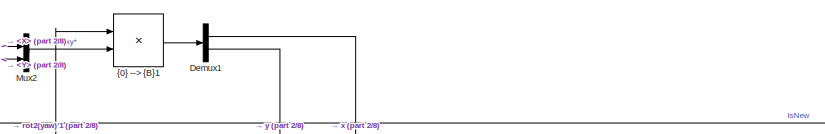
[diagram: root canvas - part 1/8, top center region]
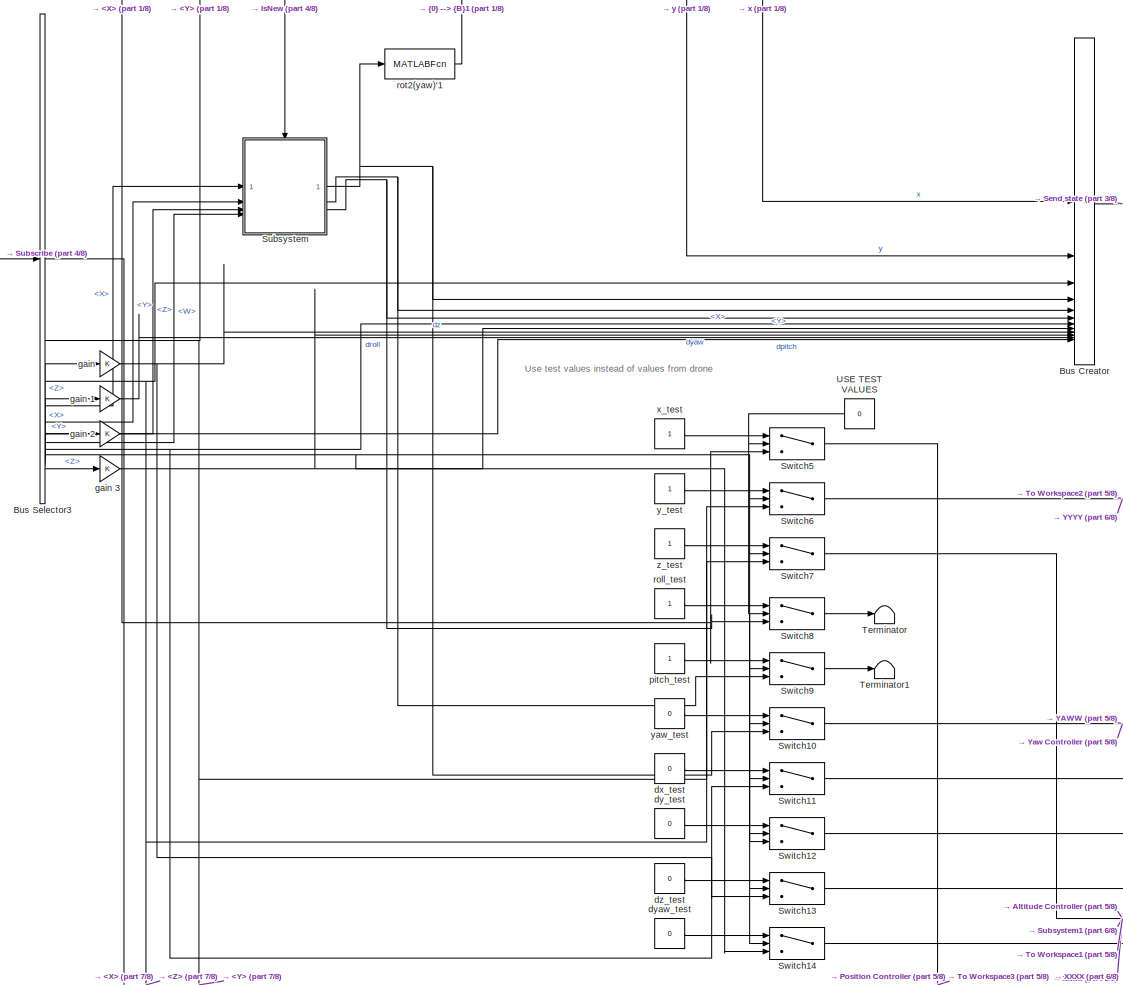
[diagram: root canvas - part 2/8, top left region]
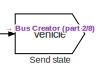
[diagram: root canvas - part 3/8, top center region]
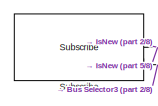
[diagram: root canvas - part 4/8, top left region]
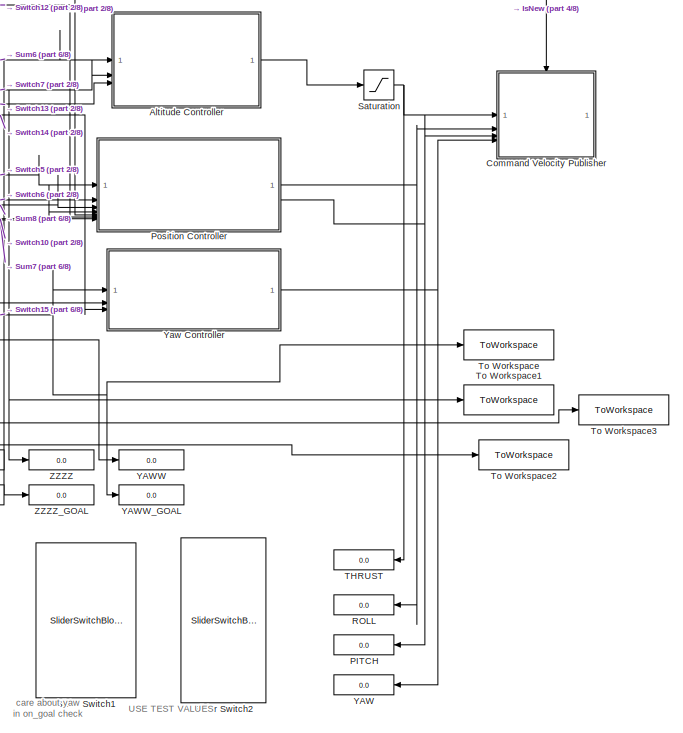
[diagram: root canvas - part 5/8, middle right region]
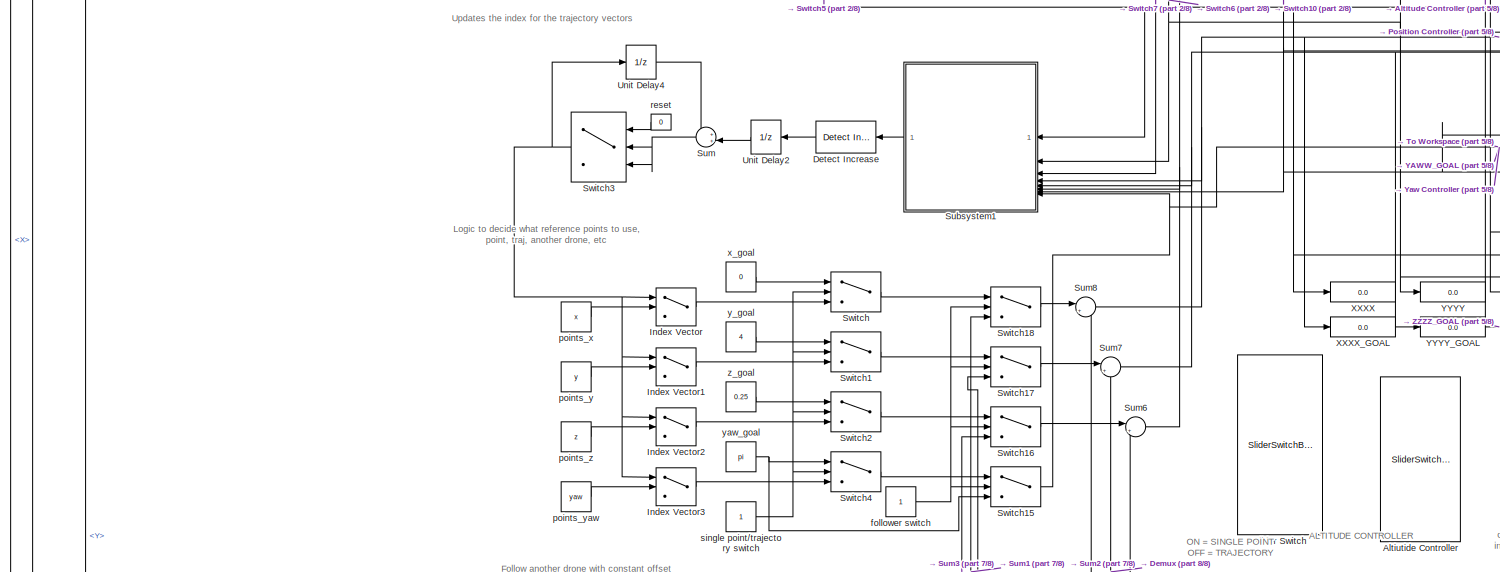
[diagram: root canvas - part 6/8, central region]
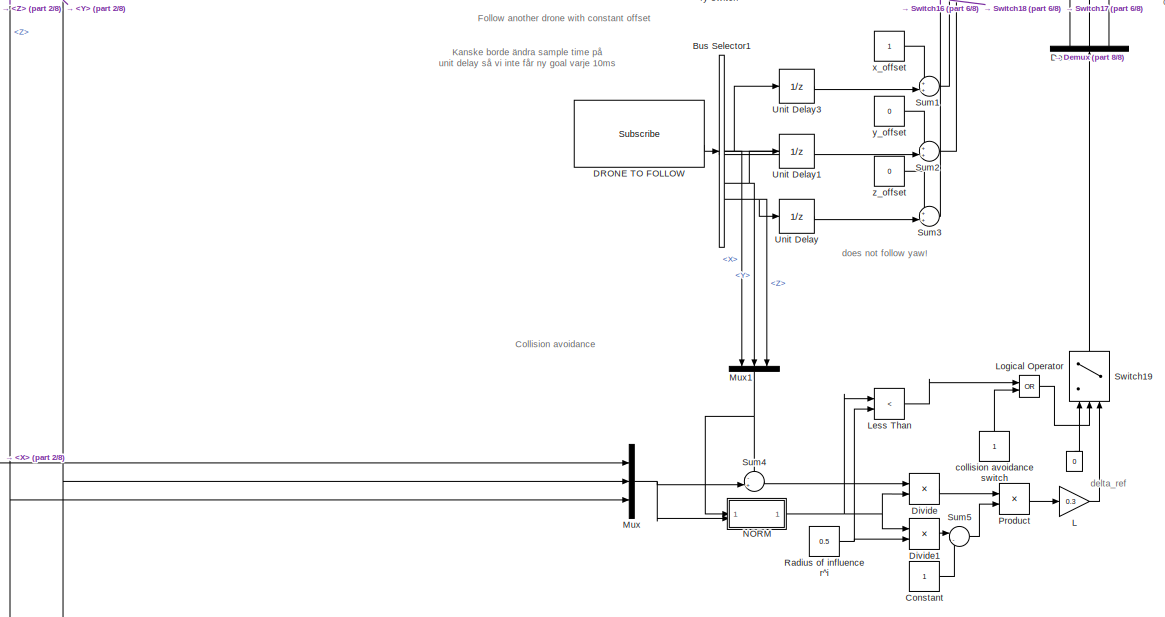
[diagram: root canvas - part 7/8, bottom center region]
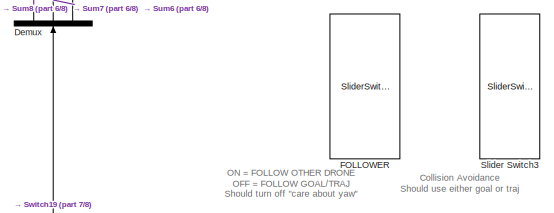
[diagram: root canvas - part 8/8, bottom right region]
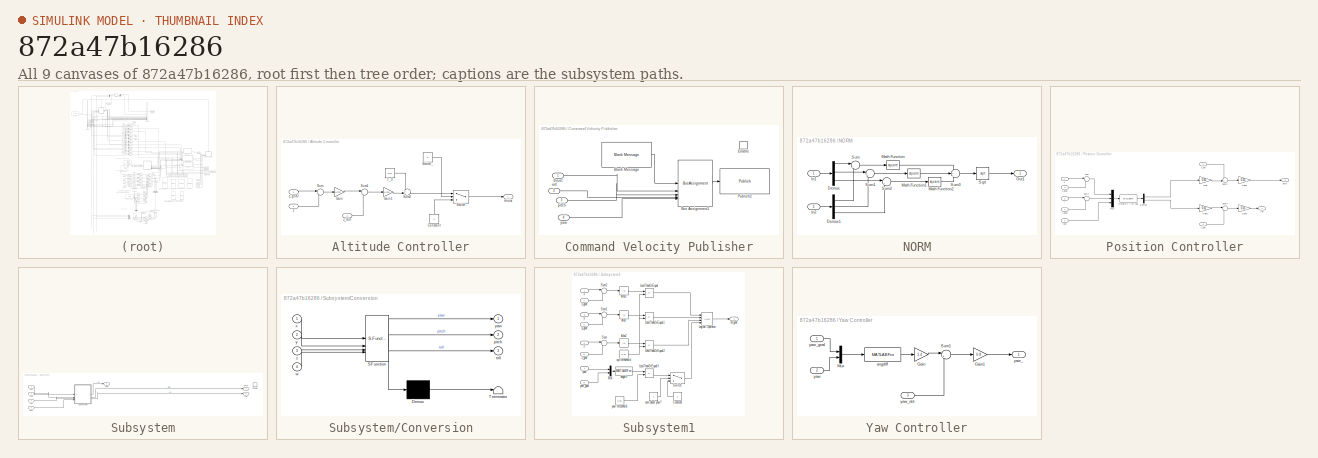
[diagram: thumbnail index - all 9 canvases of the model, root first then tree order]
MODEL slx_872a47b16286
KIND model
CONFIG AbsTol = auto
CONFIG EnableMultiTasking = on
CONFIG FixedStep = auto
CONFIG MaxStep = 0.1
CONFIG MinStep = auto
CONFIG PreLoadFcn = % load parameters of the default quadrotor\ndisp('Quadrotor parameters loaded by PreLoadFcn')\nmdl_quadrotor
CONFIG RelTol = 1e-3
CONFIG SampleTimeConstraint = Unconstrained
CONFIG SolverName = FixedStepAuto
CONFIG StartTime = 0.0
CONFIG StopTime = inf
BLOCK [Constant]  
  NameLocation = right
  Value = 0
BLOCK [SubSystem] Altitude Controller
BLOCK [Constant] Altitude Controller/Constant
  NameLocation = right
  Value = 0
BLOCK [Gain] Altitude Controller/Gain
  Gain = 0.275
BLOCK [Gain] Altitude Controller/Gain1
  Gain = 0.235
BLOCK [Sum] Altitude Controller/Sum
  Inputs = |+-
BLOCK [Sum] Altitude Controller/Sum1
  Inputs = |+-
BLOCK [Sum] Altitude Controller/Sum2
  Inputs = ++|
BLOCK [Switch] Altitude Controller/Switch
  Criteria = u2 > Threshold
  InputSameDT = off
  SaturateOnIntegerOverflow = off
BLOCK [Constant] Altitude Controller/Switch_
  Value = 0
BLOCK [Constant] Altitude Controller/T_0
  Value = 0.61
BLOCK [Outport] Altitude Controller/thrust
BLOCK [Inport] Altitude Controller/z
  Port = 2
BLOCK [Inport] Altitude Controller/z_dot
  Port = 3
BLOCK [Inport] Altitude Controller/z_goal
  PortDimensions = 1
BLOCK [SliderSwitchBlock] Altiutide Controller
  NameLocation = left
BLOCK [BusCreator] Bus Creator
  DisplayOption = bar
  InheritFromInputs = on
  Inputs = 12
BLOCK [BusSelector] Bus Selector1
  OutputSignals = Pose.Pose.Position.X,Pose.Pose.Position.Y,Pose.Pose.Position.Z
BLOCK [BusSelector] Bus Selector3
  OutputSignals = Pose.Pose.Position.X,Pose.Pose.Position.Y,Pose.Pose.Position.Z,Pose.Pose.Orientation.X,Pose.Pose.Orientation.Y,Pose.Pose.Orientation.Z,Pose.Pose.Orientation.W,Twist.Twist.Linear.X,Twist.Twist.Linear.Y,Twist.Twist.Linear.Z,Twist.Twist.Angular.X,Twist.Twist.Angular.Y,Twist.Twist.Angular.Z
BLOCK [SubSystem] Command Velocity Publisher
BLOCK [Reference] Command Velocity Publisher/Blank Message  REF=robotlib/Blank Message
  SourceBlock = robotlib/Blank Message
  SourceType = ROS Blank Message
BLOCK [BusAssignment] Command Velocity Publisher/Bus Assignment1
  AssignedSignals = Linear.Z,Linear.X,Linear.Y,Angular.Z
  DialogController = Simulink.DDGSource_BusAssignment
BLOCK [EnablePort] Command Velocity Publisher/Enable
BLOCK [Reference] Command Velocity Publisher/Publish2  REF=robotlib/Publish
  AttributesFormatString = %<messageType>
  SourceBlock = robotlib/Publish
  SourceType = ROS Publish
BLOCK [Inport] Command Velocity Publisher/pitch
  Port = 3
BLOCK [Inport] Command Velocity Publisher/roll
  Port = 2
BLOCK [Inport] Command Velocity Publisher/thrust
BLOCK [Inport] Command Velocity Publisher/yaw
  Port = 4
BLOCK [Constant] Constant
BLOCK [Reference] DRONE TO FOLLOW  REF=robotlib/Subscribe
  SourceBlock = robotlib/Subscribe
  SourceType = ROS Subscribe
BLOCK [Demux] Demux
  NameLocation = right
  Outputs = 3
BLOCK [Demux] Demux1
  Outputs = 2
BLOCK [Reference] Detect Increase  REF=simulink/Logic and Bit
Operations/Detect
Increase
  Commented = through
  NameLocation = top
  SourceBlock = simulink/Logic and Bit\nOperations/Detect\nIncrease
  SourceType = Detect Increase
BLOCK [Product] Divide
  Inputs = */
BLOCK [Product] Divide1
  Inputs = */
BLOCK [SliderSwitchBlock] FOLLOWER
  NameLocation = left
BLOCK [MultiPortSwitch] Index Vector
  DataPortOrder = Zero-based contiguous
  InputSameDT = off
  Inputs = 1
  SaturateOnIntegerOverflow = off
  zeroidx = on
BLOCK [MultiPortSwitch] Index Vector1
  DataPortOrder = Zero-based contiguous
  InputSameDT = off
  Inputs = 1
  SaturateOnIntegerOverflow = off
  zeroidx = on
BLOCK [MultiPortSwitch] Index Vector2
  DataPortOrder = Zero-based contiguous
  InputSameDT = off
  Inputs = 1
  SaturateOnIntegerOverflow = off
  zeroidx = on
BLOCK [MultiPortSwitch] Index Vector3
  DataPortOrder = Zero-based contiguous
  InputSameDT = off
  Inputs = 1
  SaturateOnIntegerOverflow = off
  zeroidx = on
BLOCK [Gain] L
  Gain = 0.3
BLOCK [RelationalOperator] Less Than
  InputSameDT = off
  Operator = <
  OutDataTypeStr = boolean
  RndMeth = Simplest
BLOCK [Logic] Logical Operator
  AllPortsSameDT = off
  Operator = OR
  OutDataTypeStr = boolean
BLOCK [Mux] Mux
  DisplayOption = bar
  Inputs = 3
BLOCK [Mux] Mux1
  DisplayOption = bar
  Inputs = 3
  NameLocation = left
BLOCK [Mux] Mux2
  DisplayOption = bar
  Inputs = 2
BLOCK [SubSystem] NORM
BLOCK [Demux] NORM/Demux
  Outputs = 3
BLOCK [Demux] NORM/Demux1
  Outputs = 3
BLOCK [Inport] NORM/In1
BLOCK [Inport] NORM/In2
  Port = 2
BLOCK [Math] NORM/Math Function
  Operator = square
BLOCK [Math] NORM/Math Function1
  Operator = square
BLOCK [Math] NORM/Math Function2
  Operator = square
BLOCK [Outport] NORM/Out1
BLOCK [Sqrt] NORM/Sqrt
BLOCK [Sum] NORM/Sum
  Inputs = |+-
BLOCK [Sum] NORM/Sum1
  Inputs = |+-
BLOCK [Sum] NORM/Sum2
  Inputs = |+-
BLOCK [Sum] NORM/Sum3
  Inputs = +++
BLOCK [Display] PITCH
  Decimation = 1
  NameLocation = top
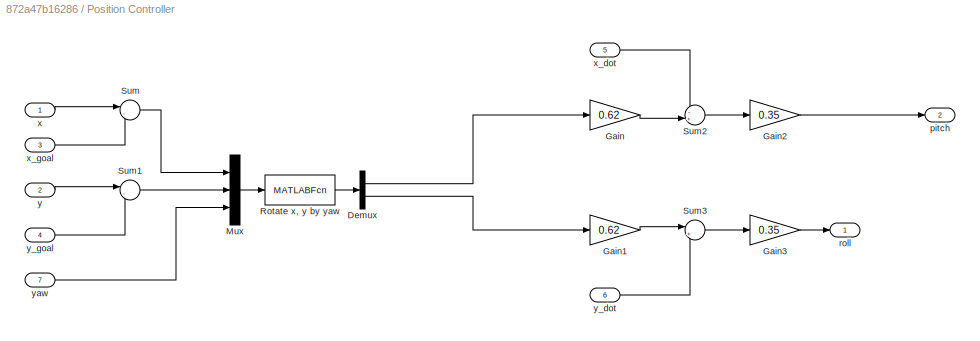
BLOCK [SubSystem] Position Controller
BLOCK [Demux] Position Controller/Demux
  Outputs = 2
BLOCK [Gain] Position Controller/Gain
  Gain = 0.62
BLOCK [Gain] Position Controller/Gain1
  Gain = 0.62
BLOCK [Gain] Position Controller/Gain2
  Gain = 0.35
BLOCK [Gain] Position Controller/Gain3
  Gain = 0.35
BLOCK [Mux] Position Controller/Mux
  DisplayOption = bar
  Inputs = 3
BLOCK [MATLABFcn] Position Controller/Rotate x, y by yaw
  MATLABFcn = rot2(u(3))'*[u(1);u(2)]
BLOCK [Sum] Position Controller/Sum
  Inputs = |-+
BLOCK [Sum] Position Controller/Sum1
  Inputs = |-+
BLOCK [Sum] Position Controller/Sum2
  Inputs = -+|
BLOCK [Sum] Position Controller/Sum3
  Inputs = |+-
BLOCK [Outport] Position Controller/pitch
  Port = 2
BLOCK [Outport] Position Controller/roll
BLOCK [Inport] Position Controller/x
BLOCK [Inport] Position Controller/x_dot
  Port = 5
BLOCK [Inport] Position Controller/x_goal
  Port = 3
  PortDimensions = 1
BLOCK [Inport] Position Controller/y
  Port = 2
BLOCK [Inport] Position Controller/y_dot
  Port = 6
BLOCK [Inport] Position Controller/y_goal
  Port = 4
  PortDimensions = 1
BLOCK [Inport] Position Controller/yaw
  Port = 7
BLOCK [Product] Product
BLOCK [Display] ROLL
  Decimation = 1
  NameLocation = top
BLOCK [Constant] Radius of influence r^i
  Value = 0.5
BLOCK [Saturate] Saturation
  LowerLimit = 0
  UpperLimit = 0.8
BLOCK [Goto] Send state
  GotoTag = vehicle
  IconDisplay = Tag and signal name
  TagVisibility = global
BLOCK [SliderSwitchBlock] Slider Switch
  NameLocation = left
BLOCK [SliderSwitchBlock] Slider Switch1
  NameLocation = left
BLOCK [SliderSwitchBlock] Slider Switch2
  NameLocation = left
BLOCK [SliderSwitchBlock] Slider Switch3
  NameLocation = left
BLOCK [Reference] Subscribe  REF=robotlib/Subscribe
  SourceBlock = robotlib/Subscribe
  SourceType = ROS Subscribe
BLOCK [SubSystem] Subsystem
BLOCK [Inport] Subsystem/<W>
  Port = 4
BLOCK [Inport] Subsystem/<X>
BLOCK [Inport] Subsystem/<Y>
  Port = 2
BLOCK [Inport] Subsystem/<Z>
  Port = 3
BLOCK [SubSystem] Subsystem/Conversion
  ErrorFcn = Stateflow.Translate.translate
  PermitHierarchicalResolution = ExplicitOnly
  SFBlockType = MATLAB Function
  TreatAsAtomicUnit = on
BLOCK [Demux] Subsystem/Conversion/ Demux 
  Outputs = 1
BLOCK [S-Function] Subsystem/Conversion/ SFunction 
  EnableBusSupport = on
  FunctionName = sf_sfun
  PortCounts = [4 4]
  SFcnIsStateOwnerBlock = off
  SFunctionDeploymentMode = off
  Tag = Stateflow S-Function 1
BLOCK [Terminator] Subsystem/Conversion/ Terminator 
BLOCK [Outport] Subsystem/Conversion/pitch
  Port = 2
  VectorParamsAs1DForOutWhenUnconnected = off
BLOCK [Outport] Subsystem/Conversion/roll
  Port = 3
  VectorParamsAs1DForOutWhenUnconnected = off
BLOCK [Inport] Subsystem/Conversion/w
  Port = 4
BLOCK [Inport] Subsystem/Conversion/x
BLOCK [Inport] Subsystem/Conversion/y
  Port = 2
BLOCK [Outport] Subsystem/Conversion/yaw
  VectorParamsAs1DForOutWhenUnconnected = off
BLOCK [Inport] Subsystem/Conversion/z
  Port = 3
BLOCK [EnablePort] Subsystem/Enable
BLOCK [Outport] Subsystem/pitch
  Port = 2
BLOCK [Outport] Subsystem/roll
  Port = 3
BLOCK [Outport] Subsystem/yaw
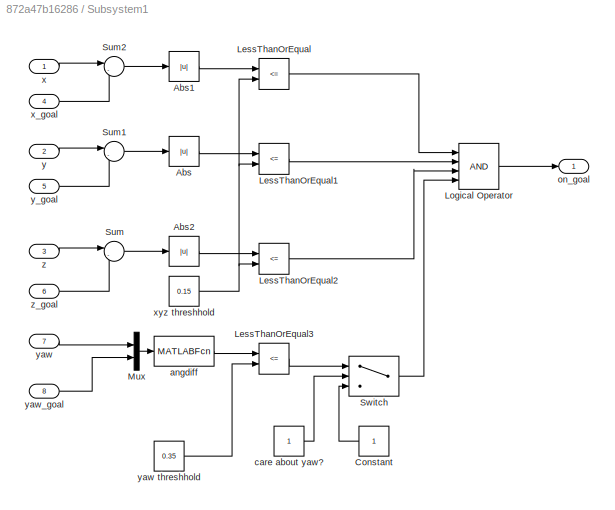
BLOCK [SubSystem] Subsystem1
  NameLocation = top
BLOCK [Abs] Subsystem1/Abs
  SaturateOnIntegerOverflow = off
BLOCK [Abs] Subsystem1/Abs1
  SaturateOnIntegerOverflow = off
BLOCK [Abs] Subsystem1/Abs2
  SaturateOnIntegerOverflow = off
BLOCK [Constant] Subsystem1/Constant
  NameLocation = top
BLOCK [RelationalOperator] Subsystem1/LessThanOrEqual
  InputSameDT = off
  Operator = <=
  OutDataTypeStr = boolean
  RndMeth = Simplest
BLOCK [RelationalOperator] Subsystem1/LessThanOrEqual1
  InputSameDT = off
  Operator = <=
  OutDataTypeStr = boolean
  RndMeth = Simplest
BLOCK [RelationalOperator] Subsystem1/LessThanOrEqual2
  InputSameDT = off
  Operator = <=
  OutDataTypeStr = boolean
  RndMeth = Simplest
BLOCK [RelationalOperator] Subsystem1/LessThanOrEqual3
  InputSameDT = off
  Operator = <=
  OutDataTypeStr = boolean
  RndMeth = Simplest
BLOCK [Logic] Subsystem1/Logical Operator
  AllPortsSameDT = off
  Inputs = 4
  OutDataTypeStr = boolean
BLOCK [Mux] Subsystem1/Mux
  DisplayOption = bar
  Inputs = 2
BLOCK [Sum] Subsystem1/Sum
  Inputs = |-+
BLOCK [Sum] Subsystem1/Sum1
  Inputs = |-+
BLOCK [Sum] Subsystem1/Sum2
  Inputs = |-+
BLOCK [Switch] Subsystem1/Switch
  Criteria = u2 > Threshold
  InputSameDT = off
  SaturateOnIntegerOverflow = off
BLOCK [MATLABFcn] Subsystem1/angdiff
  MATLABFcn = angdiff(u(2), u(1))
BLOCK [Constant] Subsystem1/care about yaw?
BLOCK [Outport] Subsystem1/on_goal
BLOCK [Inport] Subsystem1/x
BLOCK [Inport] Subsystem1/x_goal
  Port = 4
BLOCK [Constant] Subsystem1/xyz threshhold
  Value = 0.15
BLOCK [Inport] Subsystem1/y
  Port = 2
BLOCK [Inport] Subsystem1/y_goal
  Port = 5
BLOCK [Inport] Subsystem1/yaw
  Port = 7
BLOCK [Constant] Subsystem1/yaw threshhold
  Value = 0.35
BLOCK [Inport] Subsystem1/yaw_goal
  Port = 8
  PortDimensions = 1
BLOCK [Inport] Subsystem1/z
  Port = 3
BLOCK [Inport] Subsystem1/z_goal
  Port = 6
BLOCK [Sum] Sum
  Inputs = ++|
  NameLocation = top
BLOCK [Sum] Sum1
  Inputs = ++|
BLOCK [Sum] Sum2
  Inputs = ++|
BLOCK [Sum] Sum3
  Inputs = ++|
BLOCK [Sum] Sum4
  Inputs = -+|
BLOCK [Sum] Sum5
  Inputs = |-+
BLOCK [Sum] Sum6
  Inputs = |++
BLOCK [Sum] Sum7
  Inputs = |++
BLOCK [Sum] Sum8
  Inputs = |++
BLOCK [Switch] Switch
  Criteria = u2 > Threshold
  InputSameDT = off
  SaturateOnIntegerOverflow = off
BLOCK [Switch] Switch1
  Criteria = u2 > Threshold
  InputSameDT = off
  SaturateOnIntegerOverflow = off
BLOCK [Switch] Switch10
  Criteria = u2 > Threshold
  InputSameDT = off
  SaturateOnIntegerOverflow = off
BLOCK [Switch] Switch11
  Criteria = u2 > Threshold
  InputSameDT = off
  SaturateOnIntegerOverflow = off
BLOCK [Switch] Switch12
  Criteria = u2 > Threshold
  InputSameDT = off
  SaturateOnIntegerOverflow = off
BLOCK [Switch] Switch13
  Criteria = u2 > Threshold
  InputSameDT = off
  SaturateOnIntegerOverflow = off
BLOCK [Switch] Switch14
  Criteria = u2 > Threshold
  InputSameDT = off
  SaturateOnIntegerOverflow = off
BLOCK [Switch] Switch15
  Criteria = u2 > Threshold
  InputSameDT = off
  SaturateOnIntegerOverflow = off
BLOCK [Switch] Switch16
  Criteria = u2 > Threshold
  InputSameDT = off
  SaturateOnIntegerOverflow = off
BLOCK [Switch] Switch17
  Criteria = u2 > Threshold
  InputSameDT = off
  SaturateOnIntegerOverflow = off
BLOCK [Switch] Switch18
  Criteria = u2 > Threshold
  InputSameDT = off
  SaturateOnIntegerOverflow = off
BLOCK [Switch] Switch19
  Criteria = u2 > Threshold
  InputSameDT = off
  NameLocation = right
  SaturateOnIntegerOverflow = off
BLOCK [Switch] Switch2
  Criteria = u2 > Threshold
  InputSameDT = off
  SaturateOnIntegerOverflow = off
BLOCK [Switch] Switch3
  InputSameDT = off
  NameLocation = top
  SaturateOnIntegerOverflow = off
  Threshold = length(x)
BLOCK [Switch] Switch4
  Criteria = u2 > Threshold
  InputSameDT = off
  SaturateOnIntegerOverflow = off
BLOCK [Switch] Switch5
  Criteria = u2 > Threshold
  InputSameDT = off
  SaturateOnIntegerOverflow = off
BLOCK [Switch] Switch6
  Criteria = u2 > Threshold
  InputSameDT = off
  SaturateOnIntegerOverflow = off
BLOCK [Switch] Switch7
  Criteria = u2 > Threshold
  InputSameDT = off
  SaturateOnIntegerOverflow = off
BLOCK [Switch] Switch8
  Criteria = u2 > Threshold
  InputSameDT = off
  SaturateOnIntegerOverflow = off
BLOCK [Switch] Switch9
  Criteria = u2 > Threshold
  InputSameDT = off
  SaturateOnIntegerOverflow = off
BLOCK [Display] THRUST
  Decimation = 1
  NameLocation = top
BLOCK [Terminator] Terminator
BLOCK [Terminator] Terminator1
BLOCK [ToWorkspace] To Workspace
  FixptAsFi = on
  MaxDataPoints = inf
  SampleTime = -1
  SaveFormat = Timeseries
  VariableName = yawww
BLOCK [ToWorkspace] To Workspace1
  FixptAsFi = on
  MaxDataPoints = inf
  SampleTime = -1
  SaveFormat = Timeseries
  VariableName = zzz
BLOCK [ToWorkspace] To Workspace2
  FixptAsFi = on
  MaxDataPoints = inf
  SampleTime = -1
  SaveFormat = Timeseries
  VariableName = yyy
BLOCK [ToWorkspace] To Workspace3
  FixptAsFi = on
  MaxDataPoints = inf
  SampleTime = -1
  SaveFormat = Timeseries
  VariableName = xxx
BLOCK [Constant] USE TEST VALUES
  NameLocation = top
  Value = 0
BLOCK [UnitDelay] Unit Delay
  HasFrameUpgradeWarning = on
  SampleTime = -1
BLOCK [UnitDelay] Unit Delay1
  HasFrameUpgradeWarning = on
  SampleTime = -1
BLOCK [UnitDelay] Unit Delay2
  HasFrameUpgradeWarning = on
  NameLocation = top
  SampleTime = -1
BLOCK [UnitDelay] Unit Delay3
  HasFrameUpgradeWarning = on
  SampleTime = -1
BLOCK [UnitDelay] Unit Delay4
  HasFrameUpgradeWarning = on
  NameLocation = top
  SampleTime = -1
BLOCK [Display] XXXX
  Decimation = 1
BLOCK [Display] XXXX_GOAL
  Decimation = 1
BLOCK [Display] YAW
  Decimation = 1
  NameLocation = top
BLOCK [Display] YAWW
  Decimation = 1
BLOCK [Display] YAWW_GOAL
  Decimation = 1
BLOCK [Display] YYYY
  Decimation = 1
BLOCK [Display] YYYY_GOAL
  Decimation = 1
BLOCK [SubSystem] Yaw Controller
BLOCK [Gain] Yaw Controller/Gain
  Gain = 1.4
BLOCK [Gain] Yaw Controller/Gain1
  Gain = 0.8
BLOCK [Mux] Yaw Controller/Mux
  DisplayOption = bar
  Inputs = 2
BLOCK [Sum] Yaw Controller/Sum1
  Inputs = |+-
BLOCK [MATLABFcn] Yaw Controller/angdiff
  MATLABFcn = angdiff(u(2), u(1))
BLOCK [Inport] Yaw Controller/yaw
  Port = 2
BLOCK [Outport] Yaw Controller/yaw_
BLOCK [Inport] Yaw Controller/yaw_dot
  Port = 3
BLOCK [Inport] Yaw Controller/yaw_goal
  PortDimensions = 1
BLOCK [Display] ZZZZ
  Decimation = 1
BLOCK [Display] ZZZZ_GOAL
  Decimation = 1
BLOCK [Constant] collision avoidance switch
  NameLocation = top
BLOCK [Constant] dx_test
  Value = 0
BLOCK [Constant] dy_test
  Value = 0
BLOCK [Constant] dyaw_test
  Value = 0
BLOCK [Constant] dz_test
  Value = 0
BLOCK [Constant] follower switch
BLOCK [Gain] gain 
BLOCK [Gain] gain 1
BLOCK [Gain] gain 2
BLOCK [Gain] gain 3
BLOCK [Constant] pitch_test
BLOCK [Constant] points_x
  Value = x
BLOCK [Constant] points_y
  Value = y
BLOCK [Constant] points_yaw
  Value = yaw
BLOCK [Constant] points_z
  Value = z
BLOCK [Constant] reset
  NameLocation = top
  Value = 0
  VectorParams1D = off
BLOCK [Constant] roll_test
BLOCK [MATLABFcn] rot2(yaw)'1
  MATLABFcn = rot2(u)'
  Output1D = off
  OutputDimensions = [2 2]
BLOCK [Constant] single point//trajectory switch
BLOCK [Constant] x_goal
  Value = 0
BLOCK [Constant] x_offset
BLOCK [Constant] x_test
BLOCK [Constant] y_goal
  Value = 4
BLOCK [Constant] y_offset
  Value = 0
BLOCK [Constant] y_test
BLOCK [Constant] yaw_goal
  Value = pi
BLOCK [Constant] yaw_test
  Value = 0
BLOCK [Constant] z_goal
  Value = 0.25
BLOCK [Constant] z_offset
  Value = 0
BLOCK [Constant] z_test
BLOCK [Product] {0} --> {B}1
  Multiplication = Matrix(*)
  RndMeth = Zero
ANNOTATION (root): ALTITUDE CONTROLLER
ANNOTATION (root): Collision Avoidance Should use either goal or traj
ANNOTATION (root): Collision avoidance
ANNOTATION (root): Follow another drone with constant offset
ANNOTATION (root): Kanske borde ändra sample time på unit delay så vi inte får ny goal varje 10ms
ANNOTATION (root): Logic to decide what reference points to use, point, traj, another drone, etc
ANNOTATION (root): ON = FOLLOW OTHER DRONE OFF = FOLLOW GOAL/TRAJ Should turn off "care about yaw"
ANNOTATION (root): ON = SINGLE POINT OFF = TRAJECTORY
ANNOTATION (root): USE TEST VALUES
ANNOTATION (root): Updates the index for the trajectory vectors
ANNOTATION (root): Use test values instead of values from drone
ANNOTATION (root): care about yaw in on_goal check
ANNOTATION (root): delta_ref
ANNOTATION (root): does not follow yaw!
LINE  :1 -> Switch19:1
LINE Altitude Controller/Constant:1 -> Altitude Controller/Switch:3
LINE Altitude Controller/Gain1:1 -> Altitude Controller/Sum2:2
LINE Altitude Controller/Gain:1 -> Altitude Controller/Sum1:1
LINE Altitude Controller/Sum1:1 -> Altitude Controller/Gain1:1
LINE Altitude Controller/Sum2:1 -> Altitude Controller/Switch:1
LINE Altitude Controller/Sum:1 -> Altitude Controller/Gain:1
LINE Altitude Controller/Switch:1 -> Altitude Controller/thrust:1
LINE Altitude Controller/Switch_:1 -> Altitude Controller/Switch:2
LINE Altitude Controller/T_0:1 -> Altitude Controller/Sum2:1
LINE Altitude Controller/z:1 -> Altitude Controller/Sum:2
LINE Altitude Controller/z_dot:1 -> Altitude Controller/Sum1:2
LINE Altitude Controller/z_goal:1 -> Altitude Controller/Sum:1
LINE Altitude Controller:1 -> Saturation:1
LINE Bus Creator:1 -> Send state:1
NET Bus Selector1:1 -> Mux1:1, Unit Delay3:1
NET Bus Selector1:2 -> Mux1:2, Unit Delay1:1
NET Bus Selector1:3 -> Mux1:3, Unit Delay:1
NET Bus Selector3:1 -> Mux2:1, Mux:1, Switch5:3
LINE Bus Selector3:10 -> gain :1
LINE Bus Selector3:11 -> gain 1:1
LINE Bus Selector3:12 -> gain 2:1
LINE Bus Selector3:13 -> gain 3:1
NET Bus Selector3:2 -> Mux2:2, Mux:2, Switch6:3
NET Bus Selector3:3 -> Bus Creator:3, Mux:3, Switch7:3
LINE Bus Selector3:4 -> Subsystem:1
LINE Bus Selector3:5 -> Subsystem:2
LINE Bus Selector3:6 -> Subsystem:3
LINE Bus Selector3:7 -> Subsystem:4
NET Bus Selector3:8 -> Bus Creator:7, Switch11:3
NET Bus Selector3:9 -> Bus Creator:8, Switch12:3
LINE Command Velocity Publisher/Blank Message:1 -> Command Velocity Publisher/Bus Assignment1:1
LINE Command Velocity Publisher/Bus Assignment1:1 -> Command Velocity Publisher/Publish2:1
LINE Command Velocity Publisher/pitch:1 -> Command Velocity Publisher/Bus Assignment1:3
LINE Command Velocity Publisher/roll:1 -> Command Velocity Publisher/Bus Assignment1:4
LINE Command Velocity Publisher/thrust:1 -> Command Velocity Publisher/Bus Assignment1:2
LINE Command Velocity Publisher/yaw:1 -> Command Velocity Publisher/Bus Assignment1:5
LINE Constant:1 -> Sum5:2
LINE DRONE TO FOLLOW:2 -> Bus Selector1:1
LINE Demux1:1 -> Bus Creator:1
LINE Demux1:2 -> Bus Creator:2
LINE Demux:1 -> Sum8:2
LINE Demux:2 -> Sum7:2
LINE Demux:3 -> Sum6:2
LINE Detect Increase:1 -> Unit Delay2:1
LINE Divide1:1 -> Sum5:1
LINE Divide:1 -> Product:1
LINE Index Vector1:1 -> Switch1:3
LINE Index Vector2:1 -> Switch2:3
LINE Index Vector3:1 -> Switch4:3
LINE Index Vector:1 -> Switch:3
LINE L:1 -> Switch19:3
LINE Less Than:1 -> Logical Operator:1
LINE Logical Operator:1 -> Switch19:2
NET Mux1:1 -> NORM:1, Sum4:1
LINE Mux2:1 -> {0} --> {B}1:2
NET Mux:1 -> NORM:2, Sum4:2
LINE NORM/Demux1:1 -> NORM/Sum:2
LINE NORM/Demux1:2 -> NORM/Sum1:2
LINE NORM/Demux1:3 -> NORM/Sum2:2
LINE NORM/Demux:1 -> NORM/Sum:1
LINE NORM/Demux:2 -> NORM/Sum1:1
LINE NORM/Demux:3 -> NORM/Sum2:1
LINE NORM/In1:1 -> NORM/Demux:1
LINE NORM/In2:1 -> NORM/Demux1:1
LINE NORM/Math Function1:1 -> NORM/Sum3:2
LINE NORM/Math Function2:1 -> NORM/Sum3:3
LINE NORM/Math Function:1 -> NORM/Sum3:1
LINE NORM/Sqrt:1 -> NORM/Out1:1
LINE NORM/Sum1:1 -> NORM/Math Function1:1
LINE NORM/Sum2:1 -> NORM/Math Function2:1
LINE NORM/Sum3:1 -> NORM/Sqrt:1
LINE NORM/Sum:1 -> NORM/Math Function:1
NET NORM:1 -> Divide1:1, Divide:2, Less Than:1
LINE Position Controller/Demux:1 -> Position Controller/Gain:1
LINE Position Controller/Demux:2 -> Position Controller/Gain1:1
LINE Position Controller/Gain1:1 -> Position Controller/Sum3:1
LINE Position Controller/Gain2:1 -> Position Controller/pitch:1
LINE Position Controller/Gain3:1 -> Position Controller/roll:1
LINE Position Controller/Gain:1 -> Position Controller/Sum2:2
LINE Position Controller/Mux:1 -> Position Controller/Rotate x, y by yaw:1
LINE Position Controller/Rotate x, y by yaw:1 -> Position Controller/Demux:1
LINE Position Controller/Sum1:1 -> Position Controller/Mux:2
LINE Position Controller/Sum2:1 -> Position Controller/Gain2:1
LINE Position Controller/Sum3:1 -> Position Controller/Gain3:1
LINE Position Controller/Sum:1 -> Position Controller/Mux:1
LINE Position Controller/x:1 -> Position Controller/Sum:1
LINE Position Controller/x_dot:1 -> Position Controller/Sum2:1
LINE Position Controller/x_goal:1 -> Position Controller/Sum:2
LINE Position Controller/y:1 -> Position Controller/Sum1:1
LINE Position Controller/y_dot:1 -> Position Controller/Sum3:2
LINE Position Controller/y_goal:1 -> Position Controller/Sum1:2
LINE Position Controller/yaw:1 -> Position Controller/Mux:3
NET Position Controller:1 -> Command Velocity Publisher:2, ROLL:1
NET Position Controller:2 -> Command Velocity Publisher:3, PITCH:1
LINE Product:1 -> L:1
NET Radius of influence r^i:1 -> Divide1:2, Less Than:2
NET Saturation:1 -> Command Velocity Publisher:1, THRUST:1
NET Subscribe:1 -> Command Velocity Publisher:enable, Subsystem:enable
LINE Subscribe:2 -> Bus Selector3:1
LINE Subsystem/<W>:1 -> Subsystem/Conversion:4
LINE Subsystem/<X>:1 -> Subsystem/Conversion:1
LINE Subsystem/<Y>:1 -> Subsystem/Conversion:2
LINE Subsystem/<Z>:1 -> Subsystem/Conversion:3
LINE Subsystem/Conversion:1 -> Subsystem/yaw:1
LINE Subsystem/Conversion:2 -> Subsystem/pitch:1
LINE Subsystem/Conversion:3 -> Subsystem/roll:1
LINE Subsystem1/Abs1:1 -> Subsystem1/LessThanOrEqual:1
LINE Subsystem1/Abs2:1 -> Subsystem1/LessThanOrEqual2:1
LINE Subsystem1/Abs:1 -> Subsystem1/LessThanOrEqual1:1
LINE Subsystem1/Constant:1 -> Subsystem1/Switch:3
LINE Subsystem1/LessThanOrEqual1:1 -> Subsystem1/Logical Operator:2
LINE Subsystem1/LessThanOrEqual2:1 -> Subsystem1/Logical Operator:3
LINE Subsystem1/LessThanOrEqual3:1 -> Subsystem1/Switch:1
LINE Subsystem1/LessThanOrEqual:1 -> Subsystem1/Logical Operator:1
LINE Subsystem1/Logical Operator:1 -> Subsystem1/on_goal:1
LINE Subsystem1/Mux:1 -> Subsystem1/angdiff:1
LINE Subsystem1/Sum1:1 -> Subsystem1/Abs:1
LINE Subsystem1/Sum2:1 -> Subsystem1/Abs1:1
LINE Subsystem1/Sum:1 -> Subsystem1/Abs2:1
LINE Subsystem1/Switch:1 -> Subsystem1/Logical Operator:4
LINE Subsystem1/angdiff:1 -> Subsystem1/LessThanOrEqual3:1
LINE Subsystem1/care about yaw?:1 -> Subsystem1/Switch:2
LINE Subsystem1/x:1 -> Subsystem1/Sum2:1
LINE Subsystem1/x_goal:1 -> Subsystem1/Sum2:2
NET Subsystem1/xyz threshhold:1 -> Subsystem1/LessThanOrEqual1:2, Subsystem1/LessThanOrEqual2:2, Subsystem1/LessThanOrEqual:2
LINE Subsystem1/y:1 -> Subsystem1/Sum1:1
LINE Subsystem1/y_goal:1 -> Subsystem1/Sum1:2
LINE Subsystem1/yaw threshhold:1 -> Subsystem1/LessThanOrEqual3:2
LINE Subsystem1/yaw:1 -> Subsystem1/Mux:1
LINE Subsystem1/yaw_goal:1 -> Subsystem1/Mux:2
LINE Subsystem1/z:1 -> Subsystem1/Sum:1
LINE Subsystem1/z_goal:1 -> Subsystem1/Sum:2
LINE Subsystem1:1 -> Detect Increase:1
NET Subsystem:1 -> Bus Creator:4, Switch10:3, rot2(yaw)'1:1
NET Subsystem:2 -> Bus Creator:5, Switch9:3
NET Subsystem:3 -> Bus Creator:6, Switch8:3
LINE Sum1:1 -> Switch18:3
LINE Sum2:1 -> Switch17:3
LINE Sum3:1 -> Switch16:3
LINE Sum4:1 -> Divide:1
LINE Sum5:1 -> Product:2
NET Sum6:1 -> Altitude Controller:1, Subsystem1:6, ZZZZ_GOAL:1
NET Sum7:1 -> Position Controller:4, Subsystem1:5, YYYY_GOAL:1
NET Sum8:1 -> Position Controller:3, Subsystem1:4, XXXX_GOAL:1
NET Sum:1 -> Switch3:2, Switch3:3
NET Switch10:1 -> Position Controller:7, Subsystem1:7, YAWW:1, Yaw Controller:2
LINE Switch11:1 -> Position Controller:5
LINE Switch12:1 -> Position Controller:6
LINE Switch13:1 -> Altitude Controller:3
LINE Switch14:1 -> Yaw Controller:3
NET Switch15:1 -> Subsystem1:8, To Workspace:1, YAWW_GOAL:1, Yaw Controller:1
LINE Switch16:1 -> Sum6:1
LINE Switch17:1 -> Sum7:1
LINE Switch18:1 -> Sum8:1
LINE Switch19:1 -> Demux:1
LINE Switch1:1 -> Switch17:1
LINE Switch2:1 -> Switch16:1
NET Switch3:1 -> Index Vector1:1, Index Vector2:1, Index Vector3:1, Index Vector:1, Unit Delay4:1
LINE Switch4:1 -> Switch15:1
NET Switch5:1 -> Position Controller:1, Subsystem1:1, To Workspace3:1, XXXX:1
NET Switch6:1 -> Position Controller:2, Subsystem1:2, To Workspace2:1, YYYY:1
NET Switch7:1 -> Altitude Controller:2, Subsystem1:3, To Workspace1:1, ZZZZ:1
LINE Switch8:1 -> Terminator:1
LINE Switch9:1 -> Terminator1:1
LINE Switch:1 -> Switch18:1
NET USE TEST VALUES:1 -> Switch10:2, Switch11:2, Switch12:2, Switch13:2, Switch14:2, Switch5:2, Switch6:2, Switch7:2, Switch8:2, Switch9:2
LINE Unit Delay1:1 -> Sum2:2
LINE Unit Delay2:1 -> Sum:2
LINE Unit Delay3:1 -> Sum1:2
LINE Unit Delay4:1 -> Sum:1
LINE Unit Delay:1 -> Sum3:2
LINE Yaw Controller/Gain1:1 -> Yaw Controller/yaw_:1
LINE Yaw Controller/Gain:1 -> Yaw Controller/Sum1:1
LINE Yaw Controller/Mux:1 -> Yaw Controller/angdiff:1
LINE Yaw Controller/Sum1:1 -> Yaw Controller/Gain1:1
LINE Yaw Controller/angdiff:1 -> Yaw Controller/Gain:1
LINE Yaw Controller/yaw:1 -> Yaw Controller/Mux:2
LINE Yaw Controller/yaw_dot:1 -> Yaw Controller/Sum1:2
LINE Yaw Controller/yaw_goal:1 -> Yaw Controller/Mux:1
NET Yaw Controller:1 -> Command Velocity Publisher:4, YAW:1
LINE collision avoidance switch:1 -> Logical Operator:2
LINE dx_test:1 -> Switch11:1
LINE dy_test:1 -> Switch12:1
LINE dyaw_test:1 -> Switch14:1
LINE dz_test:1 -> Switch13:1
NET follower switch:1 -> Switch15:2, Switch16:2, Switch17:2, Switch18:2
LINE gain 1:1 -> Bus Creator:11
LINE gain 2:1 -> Bus Creator:12
NET gain 3:1 -> Bus Creator:10, Switch14:3
NET gain :1 -> Bus Creator:9, Switch13:3
LINE pitch_test:1 -> Switch9:1
LINE points_x:1 -> Index Vector:2
LINE points_y:1 -> Index Vector1:2
LINE points_yaw:1 -> Index Vector3:2
LINE points_z:1 -> Index Vector2:2
LINE reset:1 -> Switch3:1
LINE roll_test:1 -> Switch8:1
LINE rot2(yaw)'1:1 -> {0} --> {B}1:1
NET single point//trajectory switch:1 -> Switch1:2, Switch2:2, Switch4:2, Switch:2
LINE x_goal:1 -> Switch:1
LINE x_offset:1 -> Sum1:1
LINE x_test:1 -> Switch5:1
LINE y_goal:1 -> Switch1:1
LINE y_offset:1 -> Sum2:1
LINE y_test:1 -> Switch6:1
NET yaw_goal:1 -> Switch15:3, Switch4:1
LINE yaw_test:1 -> Switch10:1
LINE z_goal:1 -> Switch2:1
LINE z_offset:1 -> Sum3:1
LINE z_test:1 -> Switch7:1
LINE {0} --> {B}1:1 -> Demux1:1
note: NET lines group one-source signal fan-out (src -> all destinations, sorted); 1:1 wires keep LINE
CHART Subsystem/Conversion states=1 transitions=1
  STATE_LABEL 'eML_blk_kernel()'
  STATE_LABEL 'SCRIPT:\nfunction [yaw,pitch,roll]  = quat2eul(x,y,z,w)\n%#codegen\n\n% Convert the quaternion to a yaw angle (zyx euler angle)\neul = quat2eul([w,x,y,z]);\nyaw = eul(1);\nroll = eul(3);\npitch = eul(2);\n\nend\n'
CHART  states=0 transitions=0
